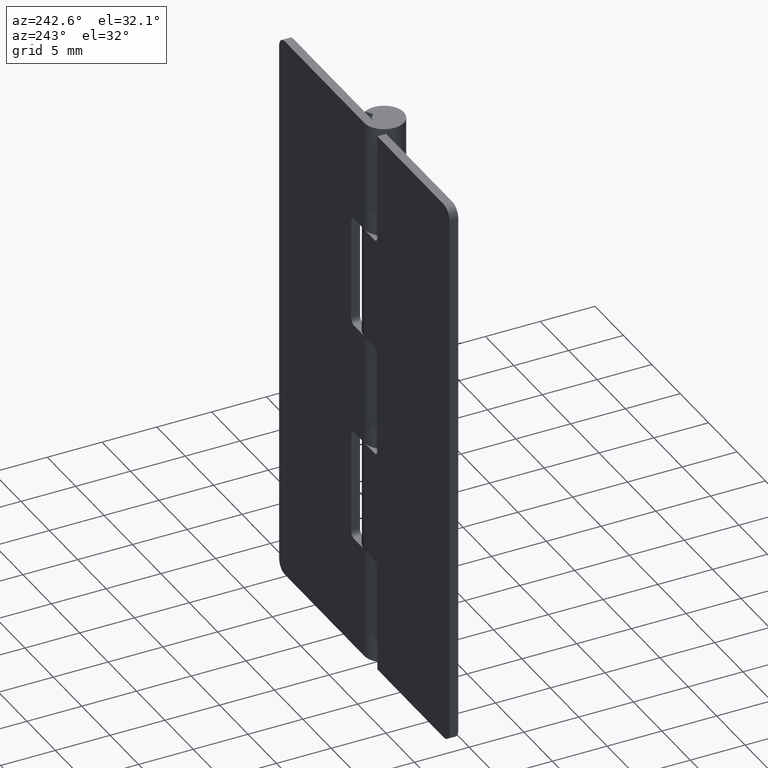
[diagram: clean part render]
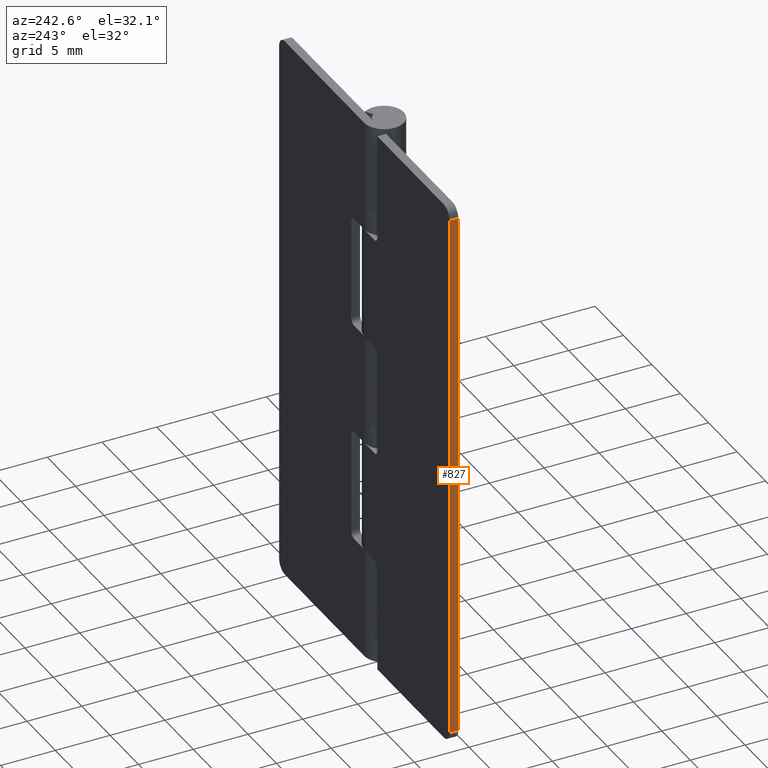
[diagram: same view with one face highlighted and labeled with its STEP entity id]
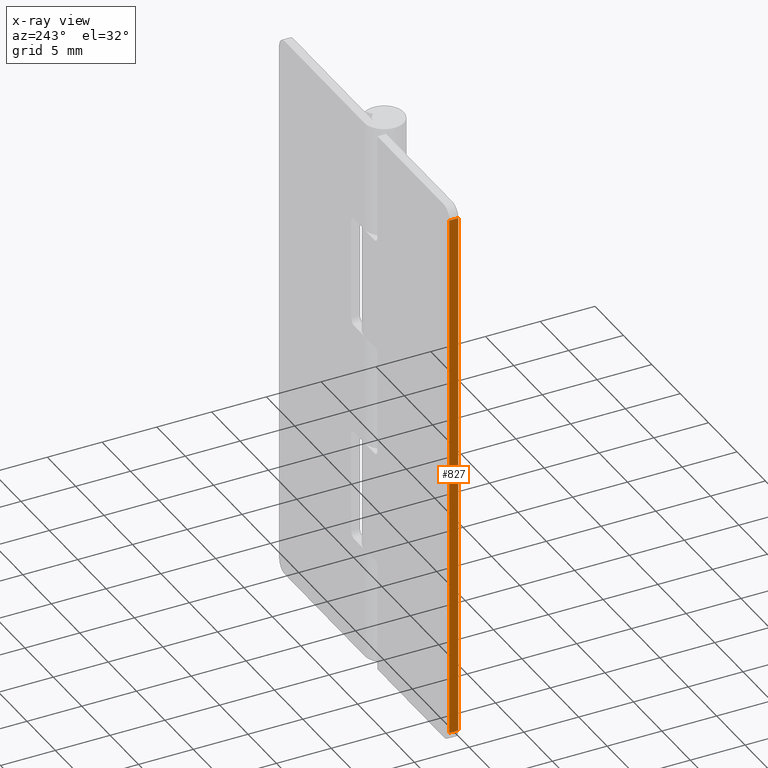
[diagram: x-ray of the same camera — body ghosted, the highlighted face saturated]
A machine part, auxiliary view. The second image highlights one B-rep face of the part: STEP entity #827.
The next image is the same camera in x-ray: the body ghosted, the highlighted face saturated — about 0% of this face is hidden behind the body in this view.
In plain terms, the highlighted face is a freeform B-spline surface patch.
Its self-contained STEP definition (entity closure, byte-faithful):
#306=CARTESIAN_POINT('',(-15.0,1.0,49.999992999999897));
#307=VERTEX_POINT('',#306);
#328=CARTESIAN_POINT('',(-15.0,1.799999000000000,49.999992999999897));
#329=VERTEX_POINT('',#328);
#343=CARTESIAN_POINT('',(-15.0,1.0,49.999992999999897));
#344=CARTESIAN_POINT('',(-15.0,1.799999000000000,49.999992999999897));
#345=QUASI_UNIFORM_CURVE('',1,(#343,#344),.UNSPECIFIED.,.F.,.U.);
#346=EDGE_CURVE('',#307,#329,#345,.T.);
#365=CARTESIAN_POINT('',(-15.0,1.0,1.0));
#366=VERTEX_POINT('',#365);
#382=CARTESIAN_POINT('',(-15.0,1.799999000000000,1.0));
#383=VERTEX_POINT('',#382);
#384=CARTESIAN_POINT('',(-15.0,1.799999000000000,1.0));
#385=CARTESIAN_POINT('',(-15.0,1.0,1.0));
#386=QUASI_UNIFORM_CURVE('',1,(#384,#385),.UNSPECIFIED.,.F.,.U.);
#387=EDGE_CURVE('',#383,#366,#386,.T.);
#808=CARTESIAN_POINT('',(-15.0,0.960040051500553,-1.447549380316106));
#809=CARTESIAN_POINT('',(-15.0,0.960040051500553,52.447540189845633));
#810=CARTESIAN_POINT('',(-15.0,1.839958969957092,-1.447549380316106));
#811=CARTESIAN_POINT('',(-15.0,1.839958969957092,52.447540189845633));
#812=B_SPLINE_SURFACE_WITH_KNOTS('',1,1,((#808,#810),(#809,#811)),.UNSPECIFIED.,.F.,.F.,.U.,(2,2),(2,2),(0.0,53.895089570161737),(0.041708334948495,0.958291687403247),.UNSPECIFIED.);
#813=CARTESIAN_POINT('',(-15.0,1.799999000000000,49.999992999999897));
#814=CARTESIAN_POINT('',(-15.0,1.799999000000000,1.0));
#815=QUASI_UNIFORM_CURVE('',1,(#813,#814),.UNSPECIFIED.,.F.,.U.);
#816=EDGE_CURVE('',#329,#383,#815,.T.);
#817=ORIENTED_EDGE('',*,*,#816,.T.);
#818=ORIENTED_EDGE('',*,*,#387,.T.);
#819=CARTESIAN_POINT('',(-15.0,1.0,49.999992999999897));
#820=CARTESIAN_POINT('',(-15.0,1.0,1.0));
#821=QUASI_UNIFORM_CURVE('',1,(#819,#820),.UNSPECIFIED.,.F.,.U.);
#822=EDGE_CURVE('',#307,#366,#821,.T.);
#823=ORIENTED_EDGE('',*,*,#822,.F.);
#824=ORIENTED_EDGE('',*,*,#346,.T.);
#825=EDGE_LOOP('',(#817,#818,#823,#824));
#826=FACE_OUTER_BOUND('',#825,.T.);
#827=ADVANCED_FACE('',(#826),#812,.T.);